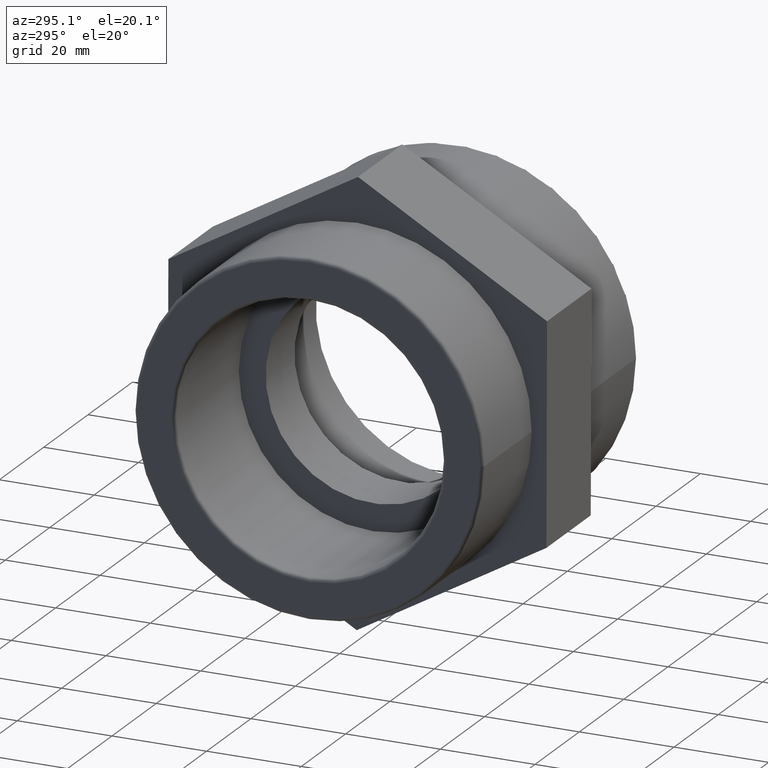
[diagram: clean part render]
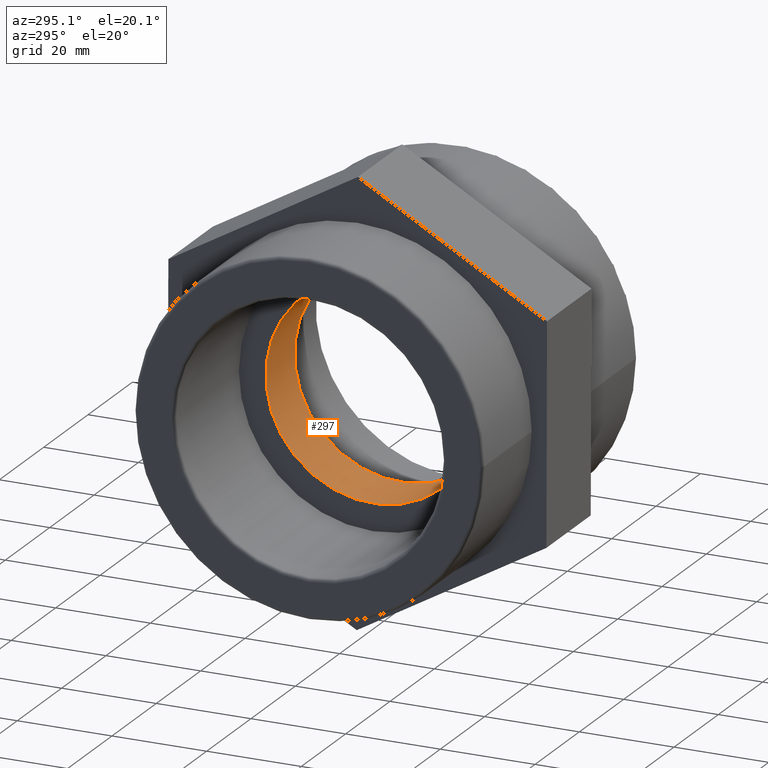
[diagram: same view with one face highlighted and labeled with its STEP entity id]
A machine part, auxiliary view. The second image highlights one B-rep face of the part: STEP entity #297.
In plain terms, the highlighted cylindrical surface (bore or boss wall) has radius 22.6624 mm, axis along (-1, -0, 0).
Its self-contained STEP definition (entity closure, byte-faithful):
#55=CYLINDRICAL_SURFACE('',#333,22.6624);
#79=FACE_BOUND('',#133,.T.);
#100=FACE_OUTER_BOUND('',#132,.T.);
#132=EDGE_LOOP('',(#258));
#133=EDGE_LOOP('',(#259));
#152=CIRCLE('',#332,22.6624);
#153=CIRCLE('',#334,22.6624);
#178=VERTEX_POINT('',#500);
#179=VERTEX_POINT('',#503);
#210=EDGE_CURVE('',#178,#178,#152,.T.);
#211=EDGE_CURVE('',#179,#179,#153,.T.);
#258=ORIENTED_EDGE('',*,*,#211,.F.);
#259=ORIENTED_EDGE('',*,*,#210,.T.);
#297=ADVANCED_FACE('',(#100,#79),#55,.F.);
#332=AXIS2_PLACEMENT_3D('',#501,#416,#417);
#333=AXIS2_PLACEMENT_3D('',#502,#418,#419);
#334=AXIS2_PLACEMENT_3D('',#504,#420,#421);
#416=DIRECTION('center_axis',(-1.,-1.83697019872103E-16,0.));
#417=DIRECTION('ref_axis',(0.,0.,1.));
#418=DIRECTION('center_axis',(-1.,-1.83697019872103E-16,0.));
#419=DIRECTION('ref_axis',(1.56766877241621E-16,-1.,0.));
#420=DIRECTION('center_axis',(-1.,-1.83697019872103E-16,0.));
#421=DIRECTION('ref_axis',(0.,0.,1.));
#500=CARTESIAN_POINT('',(-5.,-22.6624,0.));
#501=CARTESIAN_POINT('Origin',(-5.,5.32721357629099E-15,0.));
#502=CARTESIAN_POINT('Origin',(1.5,6.52124420545966E-15,0.));
#503=CARTESIAN_POINT('',(8.00000000000002,-22.6624,0.));
#504=CARTESIAN_POINT('Origin',(8.00000000000002,7.71527483462833E-15,0.));